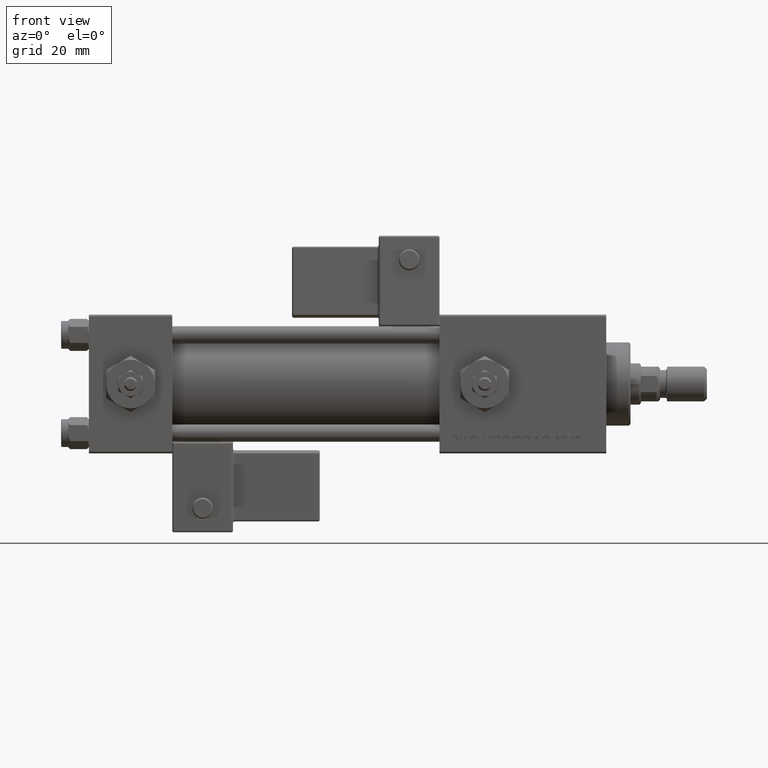
[diagram: clean part render]
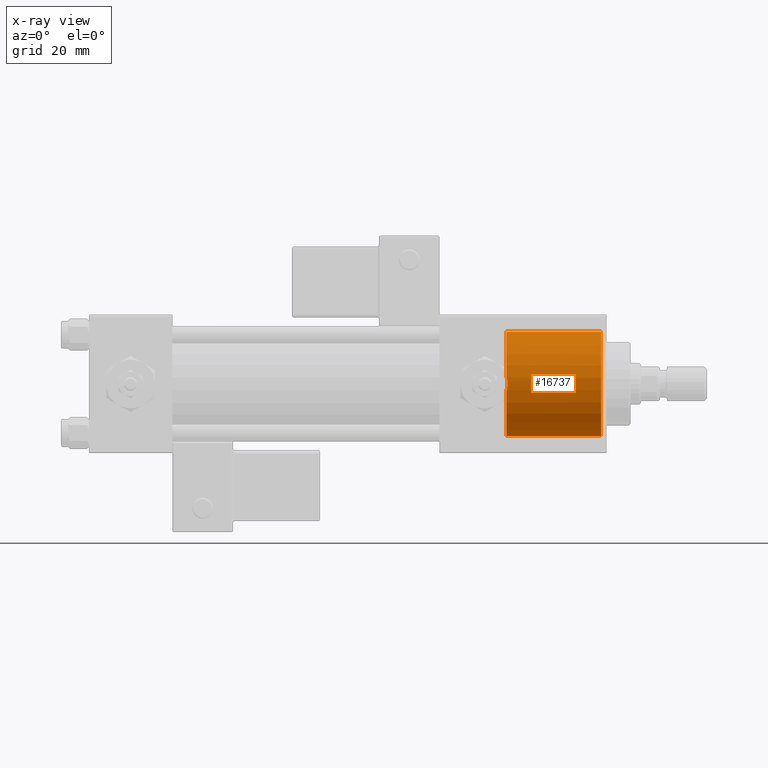
[diagram: x-ray — body ghosted, one internal face saturated and labeled with its STEP entity id]
A machine part, front view, then the same camera in x-ray: the body is ghosted and one INTERNAL B-rep face — a face not visible from any outside direction — is saturated and labeled: STEP entity #16737.
In plain terms, the highlighted cylindrical surface (partial cylindrical patch) has radius 15 mm, axis along (1, 0, 0).
Its self-contained STEP definition (entity closure, byte-faithful):
#1033 = ORIENTED_EDGE ( 'NONE', *, *, #20273, .F. ) ;
#1535 = VERTEX_POINT ( 'NONE', #31776 ) ;
#2170 = CYLINDRICAL_SURFACE ( 'NONE', #12294, 15.00000000000000000 ) ;
#5003 = DIRECTION ( 'NONE',  ( 1.000000000000000000, 0.000000000000000000, 0.000000000000000000 ) ) ;
#5031 = CARTESIAN_POINT ( 'NONE',  ( 120.3000000000000114, 0.000000000000000000, 0.000000000000000000 ) ) ;
#5072 = CARTESIAN_POINT ( 'NONE',  ( 120.4626984842214910, -14.94885601429338173, 1.277751710036709509 ) ) ;
#5147 = AXIS2_PLACEMENT_3D ( 'NONE', #25311, #5003, #17236 ) ;
#6344 = FACE_OUTER_BOUND ( 'NONE', #17106, .T. ) ;
#6471 = VERTEX_POINT ( 'NONE', #13242 ) ;
#8053 = VECTOR ( 'NONE', #54553, 1000.000000000000000 ) ;
#8795 = AXIS2_PLACEMENT_3D ( 'NONE', #50951, #33711, #12848 ) ;
#9836 = EDGE_CURVE ( 'NONE', #6471, #32012, #13933, .T. ) ;
#12294 = AXIS2_PLACEMENT_3D ( 'NONE', #20137, #37132, #30127 ) ;
#12557 = CARTESIAN_POINT ( 'NONE',  ( 120.3000000000000114, 0.000000000000000000, -15.00000000000000000 ) ) ;
#12848 = DIRECTION ( 'NONE',  ( 0.000000000000000000, 0.000000000000000000, 1.000000000000000000 ) ) ;
#13242 = CARTESIAN_POINT ( 'NONE',  ( 120.3000000000000114, 1.836970198721029589E-15, 15.00000000000000000 ) ) ;
#13933 = CIRCLE ( 'NONE', #45019, 15.00000000000000000 ) ;
#13965 = CARTESIAN_POINT ( 'NONE',  ( 120.5562853405998567, -14.98955309225332932, 0.6436176373405300133 ) ) ;
#14414 = B_SPLINE_CURVE_WITH_KNOTS ( 'NONE', 3,
 ( #48293, #22561, #39292, #23125, #13965, #5072, #26750, #43718 ),
 .UNSPECIFIED., .F., .F.,
 ( 4, 2, 2, 4 ),
 ( 6.505213034913026604E-19, 0.001920194834846953571, 0.002880292252270429815, 0.003840389669693906709 ),
 .UNSPECIFIED. ) ;
#14605 = EDGE_CURVE ( 'NONE', #6471, #41494, #51726, .T. ) ;
#15401 = EDGE_CURVE ( 'NONE', #38503, #1535, #30020, .T. ) ;
#16737 = ADVANCED_FACE ( 'NONE', ( #6344 ), #2170, .F. ) ;
#17047 = EDGE_CURVE ( 'NONE', #41494, #39866, #48794, .T. ) ;
#17106 = EDGE_LOOP ( 'NONE', ( #30096, #27653, #37927, #1033, #38224, #36121 ) ) ;
#17236 = DIRECTION ( 'NONE',  ( 0.000000000000000000, 0.000000000000000000, -1.000000000000000000 ) ) ;
#18304 = CARTESIAN_POINT ( 'NONE',  ( 120.3000000000000114, 1.836970198721029589E-15, 15.00000000000000000 ) ) ;
#20137 = CARTESIAN_POINT ( 'NONE',  ( 120.3000000000000114, 0.000000000000000000, 0.000000000000000000 ) ) ;
#20273 = EDGE_CURVE ( 'NONE', #1535, #39866, #28419, .T. ) ;
#21221 = VECTOR ( 'NONE', #28247, 1000.000000000000000 ) ;
#22561 = CARTESIAN_POINT ( 'NONE',  ( 120.4859734583129978, -14.95804352012491023, -1.282095859327421650 ) ) ;
#23125 = CARTESIAN_POINT ( 'NONE',  ( 120.5801520534215712, -15.00006670076156290, 0.3204703341157191243 ) ) ;
#25311 = CARTESIAN_POINT ( 'NONE',  ( 120.3000000000000114, 0.000000000000000000, 0.000000000000000000 ) ) ;
#26159 = DIRECTION ( 'NONE',  ( 0.000000000000000000, 0.000000000000000000, -1.000000000000000000 ) ) ;
#26750 = CARTESIAN_POINT ( 'NONE',  ( 120.3929950386892926, -14.91867580780344227, 1.590546560891513028 ) ) ;
#27195 = CARTESIAN_POINT ( 'NONE',  ( 147.5000000000000284, 1.836970198721029589E-15, 15.00000000000000000 ) ) ;
#27653 = ORIENTED_EDGE ( 'NONE', *, *, #14605, .T. ) ;
#28247 = DIRECTION ( 'NONE',  ( 1.000000000000000000, -0.000000000000000000, -0.000000000000000000 ) ) ;
#28419 = LINE ( 'NONE', #12557, #8053 ) ;
#28695 = CARTESIAN_POINT ( 'NONE',  ( 120.3000000000000114, -14.87930105885354060, -1.899052395275038219 ) ) ;
#30020 = CIRCLE ( 'NONE', #5147, 15.00000000000000000 ) ;
#30096 = ORIENTED_EDGE ( 'NONE', *, *, #9836, .F. ) ;
#30127 = DIRECTION ( 'NONE',  ( 0.000000000000000000, 0.000000000000000000, -1.000000000000000000 ) ) ;
#31776 = CARTESIAN_POINT ( 'NONE',  ( 120.3000000000000114, 0.000000000000000000, -15.00000000000000000 ) ) ;
#32012 = VERTEX_POINT ( 'NONE', #38756 ) ;
#32571 = EDGE_CURVE ( 'NONE', #38503, #32012, #14414, .T. ) ;
#33711 = DIRECTION ( 'NONE',  ( 1.000000000000000000, 0.000000000000000000, 0.000000000000000000 ) ) ;
#36121 = ORIENTED_EDGE ( 'NONE', *, *, #32571, .T. ) ;
#37132 = DIRECTION ( 'NONE',  ( 1.000000000000000000, -0.000000000000000000, -0.000000000000000000 ) ) ;
#37927 = ORIENTED_EDGE ( 'NONE', *, *, #17047, .T. ) ;
#38224 = ORIENTED_EDGE ( 'NONE', *, *, #15401, .F. ) ;
#38503 = VERTEX_POINT ( 'NONE', #28695 ) ;
#38756 = CARTESIAN_POINT ( 'NONE',  ( 120.3000000000000114, -14.87930105885354060, 1.899052395275036220 ) ) ;
#39292 = CARTESIAN_POINT ( 'NONE',  ( 120.5796936925954270, -14.99986563316393529, -0.6502615138571983255 ) ) ;
#39866 = VERTEX_POINT ( 'NONE', #49463 ) ;
#40062 = DIRECTION ( 'NONE',  ( 1.000000000000000000, 0.000000000000000000, 0.000000000000000000 ) ) ;
#41494 = VERTEX_POINT ( 'NONE', #27195 ) ;
#43718 = CARTESIAN_POINT ( 'NONE',  ( 120.3000000000000114, -14.87930105885354060, 1.899052395275036220 ) ) ;
#45019 = AXIS2_PLACEMENT_3D ( 'NONE', #5031, #40062, #26159 ) ;
#48293 = CARTESIAN_POINT ( 'NONE',  ( 120.3000000000000114, -14.87930105885354060, -1.899052395275038219 ) ) ;
#48794 = CIRCLE ( 'NONE', #8795, 15.00000000000000000 ) ;
#49463 = CARTESIAN_POINT ( 'NONE',  ( 147.5000000000000284, 0.000000000000000000, -15.00000000000000000 ) ) ;
#50951 = CARTESIAN_POINT ( 'NONE',  ( 147.5000000000000284, 0.000000000000000000, 0.000000000000000000 ) ) ;
#51726 = LINE ( 'NONE', #18304, #21221 ) ;
#54553 = DIRECTION ( 'NONE',  ( 1.000000000000000000, -0.000000000000000000, -0.000000000000000000 ) ) ;